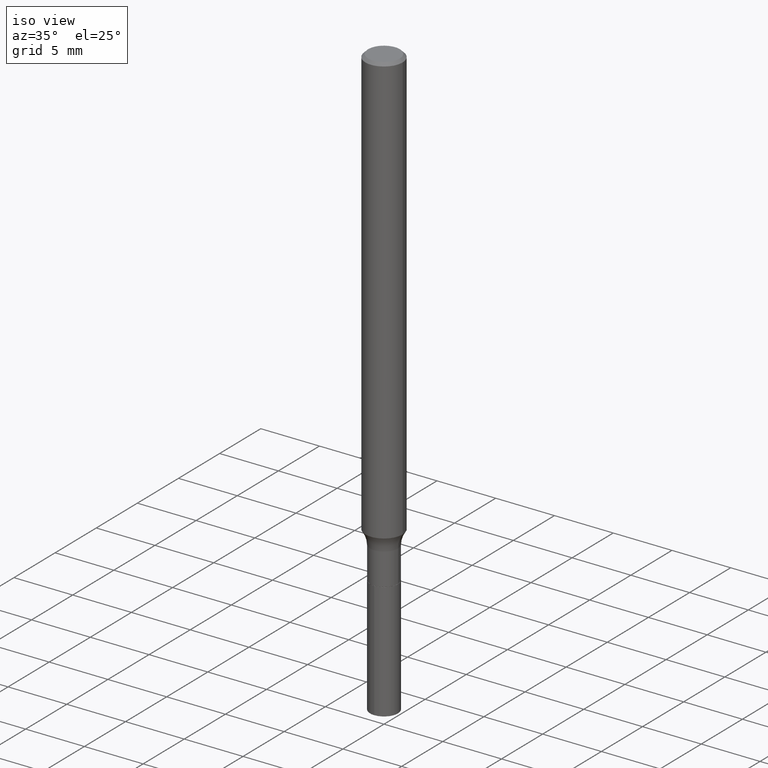
[diagram: clean part render]
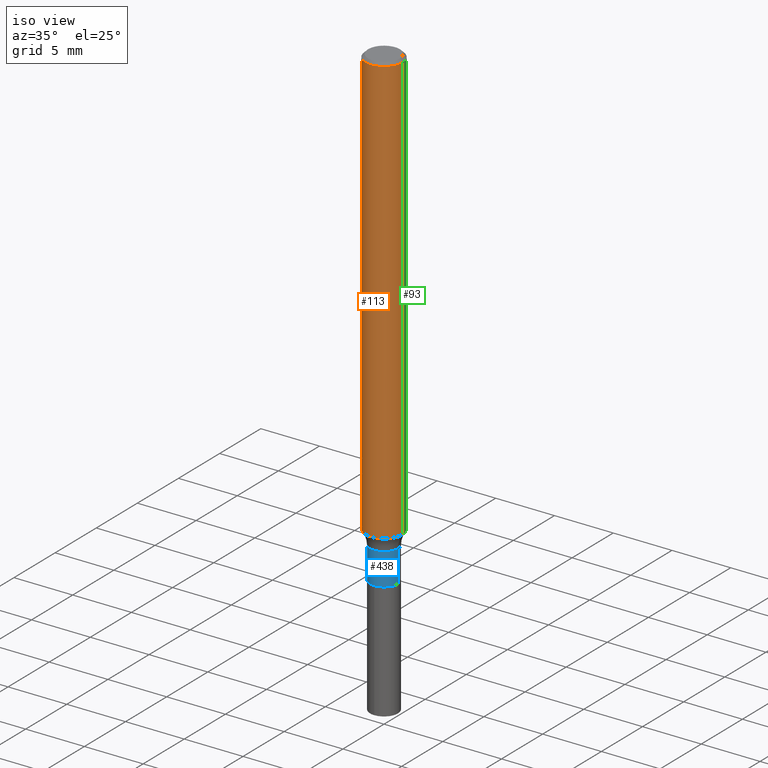
[diagram: same view with three faces highlighted in distinct colors, each labeled with its STEP entity id]
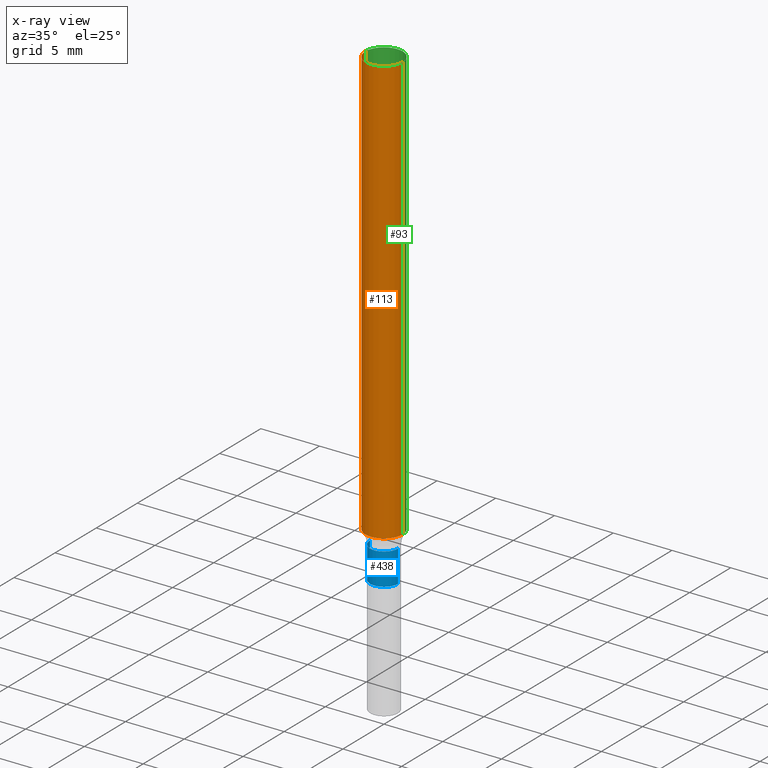
[diagram: x-ray of the same camera — body ghosted, the three highlighted faces saturated]
A machine part, iso view with three faces highlighted in distinct colors.
The next image is the same camera in x-ray (body ghosted, the three faces saturated) — at least one of them is partly hidden behind the body in this view.
Their STEP definitions:

[orange] entity #113 — the highlighted cylindrical surface (edge-blend (fillet) strip) has radius 1.5875 mm, axis along (-0, 0, 1).
#2 = ORIENTED_EDGE ( 'NONE', *, *, #424, .F. ) ;
#17 = CIRCLE ( 'NONE', #61, 0.06250000000000000000 ) ;
#37 = VECTOR ( 'NONE', #393, 39.37007874015748143 ) ;
#45 = DIRECTION ( 'NONE',  ( 1.000000000000000000, -6.982962677686272233E-15, 0.000000000000000000 ) ) ;
#49 = LINE ( 'NONE', #347, #37 ) ;
#55 = AXIS2_PLACEMENT_3D ( 'NONE', #193, #344, #45 ) ;
#61 = AXIS2_PLACEMENT_3D ( 'NONE', #62, #173, #138 ) ;
#62 = CARTESIAN_POINT ( 'NONE',  ( 2.292627005798583689E-31, -3.273263755165475115E-17, -0.009375000000000074246 ) ) ;
#102 = FACE_OUTER_BOUND ( 'NONE', #276, .T. ) ;
#113 = ADVANCED_FACE ( 'NONE', ( #102 ), #340, .T. ) ;
#131 = ORIENTED_EDGE ( 'NONE', *, *, #280, .T. ) ;
#134 = VERTEX_POINT ( 'NONE', #409 ) ;
#135 = EDGE_CURVE ( 'NONE', #478, #445, #17, .T. ) ;
#138 = DIRECTION ( 'NONE',  ( 1.000000000000000000, -6.982962677686266711E-15, 0.000000000000000000 ) ) ;
#150 = CARTESIAN_POINT ( 'NONE',  ( 0.06250000000000020817, -5.460679135430753923E-15, -1.439000664898319792 ) ) ;
#173 = DIRECTION ( 'NONE',  ( -2.445468806185136597E-29, 3.491481338843145583E-15, 1.000000000000000000 ) ) ;
#186 = DIRECTION ( 'NONE',  ( -2.445468806185136877E-29, 3.491481338843145188E-15, 1.000000000000000000 ) ) ;
#193 = CARTESIAN_POINT ( 'NONE',  ( 3.519031238088511637E-29, -5.024243968075361465E-15, -1.439000664898319792 ) ) ;
#194 = LINE ( 'NONE', #430, #416 ) ;
#197 = ORIENTED_EDGE ( 'NONE', *, *, #241, .T. ) ;
#241 = EDGE_CURVE ( 'NONE', #134, #325, #265, .T. ) ;
#265 = CIRCLE ( 'NONE', #55, 0.06250000000000019429 ) ;
#276 = EDGE_LOOP ( 'NONE', ( #2, #197, #131, #364 ) ) ;
#280 = EDGE_CURVE ( 'NONE', #325, #445, #49, .T. ) ;
#312 = CARTESIAN_POINT ( 'NONE',  ( 0.06250000000000000000, -4.691678049070464390E-16, -0.009375000000000074246 ) ) ;
#319 = AXIS2_PLACEMENT_3D ( 'NONE', #383, #323, #375 ) ;
#323 = DIRECTION ( 'NONE',  ( -2.445468806185136597E-29, 3.491481338843145583E-15, 1.000000000000000000 ) ) ;
#325 = VERTEX_POINT ( 'NONE', #150 ) ;
#340 = CYLINDRICAL_SURFACE ( 'NONE', #319, 0.06250000000000009714 ) ;
#344 = DIRECTION ( 'NONE',  ( -2.445468806185136597E-29, 3.491481338843145583E-15, 1.000000000000000000 ) ) ;
#347 = CARTESIAN_POINT ( 'NONE',  ( 0.06250000000000009714, -4.364351673553924090E-16, 3.047610484872464775E-30 ) ) ;
#348 = CARTESIAN_POINT ( 'NONE',  ( -0.06250000000000000000, -2.084399092963443430E-15, -0.009375000000000074246 ) ) ;
#364 = ORIENTED_EDGE ( 'NONE', *, *, #135, .F. ) ;
#375 = DIRECTION ( 'NONE',  ( 1.000000000000000000, -6.982962677686267499E-15, 4.876176775795935793E-29 ) ) ;
#383 = CARTESIAN_POINT ( 'NONE',  ( 0.000000000000000000, 0.000000000000000000, 0.000000000000000000 ) ) ;
#393 = DIRECTION ( 'NONE',  ( -2.445468806185136877E-29, 3.491481338843145188E-15, 1.000000000000000000 ) ) ;
#409 = CARTESIAN_POINT ( 'NONE',  ( -0.06250000000000020817, -4.580154758225297271E-15, -1.439000664898319792 ) ) ;
#416 = VECTOR ( 'NONE', #186, 39.37007874015748143 ) ;
#424 = EDGE_CURVE ( 'NONE', #134, #478, #194, .T. ) ;
#430 = CARTESIAN_POINT ( 'NONE',  ( -0.06250000000000009714, 4.440892098500633064E-16, -3.074334431409321018E-30 ) ) ;
#445 = VERTEX_POINT ( 'NONE', #312 ) ;
#478 = VERTEX_POINT ( 'NONE', #348 ) ;

[blue] entity #438 — the highlighted cylindrical surface (edge-blend (fillet) strip) has radius 1.1874 mm, axis along (-0, 0, 1).
#3 = VECTOR ( 'NONE', #296, 39.37007874015748143 ) ;
#4 = VECTOR ( 'NONE', #304, 39.37007874015748143 ) ;
#12 = AXIS2_PLACEMENT_3D ( 'NONE', #392, #436, #126 ) ;
#13 = CYLINDRICAL_SURFACE ( 'NONE', #12, 0.04674999999999999989 ) ;
#23 = ORIENTED_EDGE ( 'NONE', *, *, #196, .T. ) ;
#40 = CARTESIAN_POINT ( 'NONE',  ( 0.04674999999999999989, -5.888383277958965040E-15, -1.593000000000000194 ) ) ;
#43 = CIRCLE ( 'NONE', #151, 0.04674999999999999295 ) ;
#59 = VERTEX_POINT ( 'NONE', #40 ) ;
#68 = DIRECTION ( 'NONE',  ( -2.445468806185136597E-29, 3.491481338843145583E-15, 1.000000000000000000 ) ) ;
#116 = EDGE_CURVE ( 'NONE', #59, #463, #414, .T. ) ;
#126 = DIRECTION ( 'NONE',  ( 1.000000000000000000, -6.982962677686266711E-15, 4.876176775795935793E-29 ) ) ;
#151 = AXIS2_PLACEMENT_3D ( 'NONE', #326, #68, #216 ) ;
#158 = CARTESIAN_POINT ( 'NONE',  ( 3.895631808252923370E-29, -5.561929772777131251E-15, -1.593000000000000194 ) ) ;
#162 = LINE ( 'NONE', #386, #4 ) ;
#169 = EDGE_CURVE ( 'NONE', #183, #385, #162, .T. ) ;
#170 = ORIENTED_EDGE ( 'NONE', *, *, #169, .F. ) ;
#182 = CARTESIAN_POINT ( 'NONE',  ( 0.04674999999999999989, -3.264535051818329510E-16, 2.279612642684599927E-30 ) ) ;
#183 = VERTEX_POINT ( 'NONE', #260 ) ;
#196 = EDGE_CURVE ( 'NONE', #183, #59, #360, .T. ) ;
#216 = DIRECTION ( 'NONE',  ( 1.000000000000000000, -6.982962677686276966E-15, 0.000000000000000000 ) ) ;
#221 = DIRECTION ( 'NONE',  ( 1.000000000000000000, -6.982962677686276177E-15, 0.000000000000000000 ) ) ;
#248 = ORIENTED_EDGE ( 'NONE', *, *, #116, .T. ) ;
#260 = CARTESIAN_POINT ( 'NONE',  ( -0.04674999999999999989, -5.042956792181175940E-15, -1.593000000000000194 ) ) ;
#273 = FACE_OUTER_BOUND ( 'NONE', #483, .T. ) ;
#296 = DIRECTION ( 'NONE',  ( -2.445468806185136877E-29, 3.491481338843145188E-15, 1.000000000000000000 ) ) ;
#304 = DIRECTION ( 'NONE',  ( -2.445468806185136877E-29, 3.491481338843145188E-15, 1.000000000000000000 ) ) ;
#311 = EDGE_CURVE ( 'NONE', #385, #463, #43, .T. ) ;
#326 = CARTESIAN_POINT ( 'NONE',  ( 3.633966645991112620E-29, -5.188341269520914499E-15, -1.485999999999999988 ) ) ;
#357 = CARTESIAN_POINT ( 'NONE',  ( 0.04674999999999999295, -5.514794774702747499E-15, -1.485999999999999988 ) ) ;
#360 = CIRCLE ( 'NONE', #429, 0.04674999999999999989 ) ;
#385 = VERTEX_POINT ( 'NONE', #466 ) ;
#386 = CARTESIAN_POINT ( 'NONE',  ( -0.04674999999999999989, 3.321787289678468361E-16, -2.299602154694168275E-30 ) ) ;
#392 = CARTESIAN_POINT ( 'NONE',  ( 0.000000000000000000, 0.000000000000000000, 0.000000000000000000 ) ) ;
#396 = DIRECTION ( 'NONE',  ( -2.445468806185136597E-29, 3.491481338843145583E-15, 1.000000000000000000 ) ) ;
#414 = LINE ( 'NONE', #182, #3 ) ;
#429 = AXIS2_PLACEMENT_3D ( 'NONE', #158, #396, #221 ) ;
#436 = DIRECTION ( 'NONE',  ( -2.445468806185136597E-29, 3.491481338843145583E-15, 1.000000000000000000 ) ) ;
#438 = ADVANCED_FACE ( 'NONE', ( #273 ), #13, .T. ) ;
#449 = ORIENTED_EDGE ( 'NONE', *, *, #311, .F. ) ;
#463 = VERTEX_POINT ( 'NONE', #357 ) ;
#466 = CARTESIAN_POINT ( 'NONE',  ( -0.04674999999999999295, -5.042956792181175940E-15, -1.485999999999999988 ) ) ;
#483 = EDGE_LOOP ( 'NONE', ( #170, #23, #248, #449 ) ) ;

[green] entity #93 — the highlighted cylindrical surface (edge-blend (fillet) strip) has radius 1.5875 mm, axis along (-0, 0, 1).
#28 = EDGE_CURVE ( 'NONE', #325, #134, #415, .T. ) ;
#37 = VECTOR ( 'NONE', #393, 39.37007874015748143 ) ;
#48 = AXIS2_PLACEMENT_3D ( 'NONE', #98, #458, #73 ) ;
#49 = LINE ( 'NONE', #347, #37 ) ;
#73 = DIRECTION ( 'NONE',  ( 1.000000000000000000, -6.982962677686267499E-15, 4.876176775795935793E-29 ) ) ;
#93 = ADVANCED_FACE ( 'NONE', ( #203 ), #149, .T. ) ;
#98 = CARTESIAN_POINT ( 'NONE',  ( 0.000000000000000000, 0.000000000000000000, 0.000000000000000000 ) ) ;
#107 = DIRECTION ( 'NONE',  ( 1.000000000000000000, -6.982962677686272233E-15, 0.000000000000000000 ) ) ;
#134 = VERTEX_POINT ( 'NONE', #409 ) ;
#149 = CYLINDRICAL_SURFACE ( 'NONE', #48, 0.06250000000000009714 ) ;
#150 = CARTESIAN_POINT ( 'NONE',  ( 0.06250000000000020817, -5.460679135430753923E-15, -1.439000664898319792 ) ) ;
#178 = CIRCLE ( 'NONE', #439, 0.06250000000000000000 ) ;
#186 = DIRECTION ( 'NONE',  ( -2.445468806185136877E-29, 3.491481338843145188E-15, 1.000000000000000000 ) ) ;
#194 = LINE ( 'NONE', #430, #416 ) ;
#203 = FACE_OUTER_BOUND ( 'NONE', #426, .T. ) ;
#214 = EDGE_CURVE ( 'NONE', #445, #478, #178, .T. ) ;
#219 = DIRECTION ( 'NONE',  ( 1.000000000000000000, -6.982962677686266711E-15, 0.000000000000000000 ) ) ;
#246 = CARTESIAN_POINT ( 'NONE',  ( 3.519031238088511637E-29, -5.024243968075361465E-15, -1.439000664898319792 ) ) ;
#252 = AXIS2_PLACEMENT_3D ( 'NONE', #246, #379, #107 ) ;
#280 = EDGE_CURVE ( 'NONE', #325, #445, #49, .T. ) ;
#312 = CARTESIAN_POINT ( 'NONE',  ( 0.06250000000000000000, -4.691678049070464390E-16, -0.009375000000000074246 ) ) ;
#325 = VERTEX_POINT ( 'NONE', #150 ) ;
#335 = ORIENTED_EDGE ( 'NONE', *, *, #280, .F. ) ;
#347 = CARTESIAN_POINT ( 'NONE',  ( 0.06250000000000009714, -4.364351673553924090E-16, 3.047610484872464775E-30 ) ) ;
#348 = CARTESIAN_POINT ( 'NONE',  ( -0.06250000000000000000, -2.084399092963443430E-15, -0.009375000000000074246 ) ) ;
#350 = CARTESIAN_POINT ( 'NONE',  ( 2.292627005798583689E-31, -3.273263755165475115E-17, -0.009375000000000074246 ) ) ;
#358 = ORIENTED_EDGE ( 'NONE', *, *, #214, .F. ) ;
#369 = ORIENTED_EDGE ( 'NONE', *, *, #424, .T. ) ;
#379 = DIRECTION ( 'NONE',  ( -2.445468806185136597E-29, 3.491481338843145583E-15, 1.000000000000000000 ) ) ;
#393 = DIRECTION ( 'NONE',  ( -2.445468806185136877E-29, 3.491481338843145188E-15, 1.000000000000000000 ) ) ;
#394 = DIRECTION ( 'NONE',  ( -2.445468806185136597E-29, 3.491481338843145583E-15, 1.000000000000000000 ) ) ;
#409 = CARTESIAN_POINT ( 'NONE',  ( -0.06250000000000020817, -4.580154758225297271E-15, -1.439000664898319792 ) ) ;
#415 = CIRCLE ( 'NONE', #252, 0.06250000000000019429 ) ;
#416 = VECTOR ( 'NONE', #186, 39.37007874015748143 ) ;
#424 = EDGE_CURVE ( 'NONE', #134, #478, #194, .T. ) ;
#426 = EDGE_LOOP ( 'NONE', ( #465, #369, #358, #335 ) ) ;
#430 = CARTESIAN_POINT ( 'NONE',  ( -0.06250000000000009714, 4.440892098500633064E-16, -3.074334431409321018E-30 ) ) ;
#439 = AXIS2_PLACEMENT_3D ( 'NONE', #350, #394, #219 ) ;
#445 = VERTEX_POINT ( 'NONE', #312 ) ;
#458 = DIRECTION ( 'NONE',  ( -2.445468806185136597E-29, 3.491481338843145583E-15, 1.000000000000000000 ) ) ;
#465 = ORIENTED_EDGE ( 'NONE', *, *, #28, .T. ) ;
#478 = VERTEX_POINT ( 'NONE', #348 ) ;